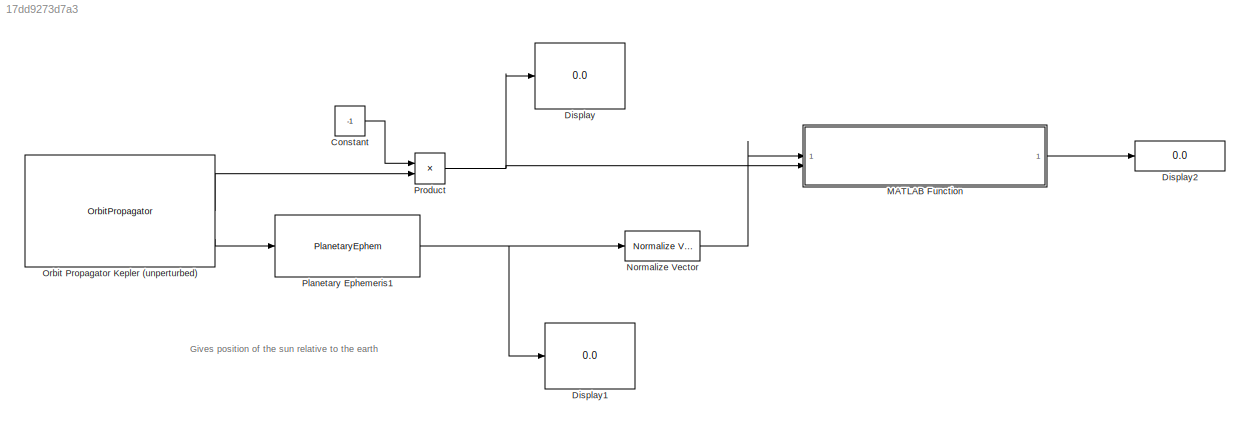
MODEL slx_17dd9273d7a3
KIND model
CONFIG AbsTol = auto
CONFIG EnableMultiTasking = off
CONFIG FixedStep = auto
CONFIG MaxStep = auto
CONFIG MinStep = auto
CONFIG RelTol = 1e-3
CONFIG SampleTimeConstraint = Unconstrained
CONFIG SolverName = VariableStepAuto
CONFIG StartTime = 0.0
CONFIG StopTime = 7200
BLOCK [Constant] Constant
  Value = -1
BLOCK [Display] Display
  Decimation = 1
BLOCK [Display] Display1
  Decimation = 1
BLOCK [Display] Display2
  Decimation = 1
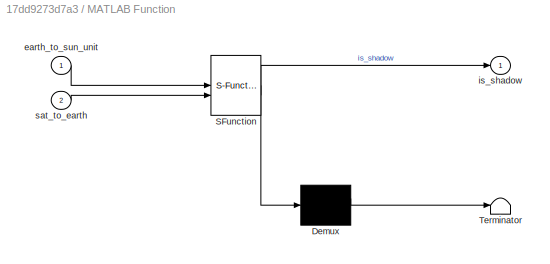
BLOCK [SubSystem] MATLAB Function
  ErrorFcn = Stateflow.Translate.translate
  PermitHierarchicalResolution = ExplicitOnly
  SFBlockType = MATLAB Function
  TreatAsAtomicUnit = on
BLOCK [Demux] MATLAB Function/ Demux 
  Outputs = 1
BLOCK [S-Function] MATLAB Function/ SFunction 
  EnableBusSupport = on
  FunctionName = sf_sfun
  PortCounts = [2 2]
  SFcnIsStateOwnerBlock = off
  SFunctionDeploymentMode = off
  Tag = Stateflow S-Function 2
BLOCK [Terminator] MATLAB Function/ Terminator 
BLOCK [Inport] MATLAB Function/earth_to_sun_unit
BLOCK [Outport] MATLAB Function/is_shadow
BLOCK [Inport] MATLAB Function/sat_to_earth
  Port = 2
BLOCK [Reference] Normalize Vector  REF=vrlib/Utilities/Normalize Vector
  SourceBlock = vrlib/Utilities/Normalize Vector
  SourceType = Normalize Vector
BLOCK [OrbitPropagator] Orbit Propagator Kepler (unperturbed)
  customJ2 = 1.0826269e-03
  customMu = 4.305e13
  customOmega = 4.06125949e-3
  customR = 3396200
  fixedPosition = [-4142689.0 -2676864.7 -4669861.6]
  fixedVelocity = [1452.7 -6720.7 2568.1]
  inertialPosition = [3649700.0 3308200.0 -4676600.0]
  inertialVelocity = [-2750.8 6666.4 2573.4]
BLOCK [PlanetaryEphem] Planetary Ephemeris1
  outputVelocity = off
  target = Sun
BLOCK [Product] Product
ANNOTATION (root): Gives position of the sun relative to the earth
LINE Constant:1 -> Product:1
LINE MATLAB Function:1 -> Display2:1
LINE Normalize Vector:1 -> MATLAB Function:1
LINE Orbit Propagator Kepler (unperturbed):1 -> Product:2
LINE Orbit Propagator Kepler (unperturbed):3 -> Planetary Ephemeris1:1
NET Planetary Ephemeris1:1 -> Display1:1, Normalize Vector:1
NET Product:1 -> Display:1, MATLAB Function:2
note: NET lines group one-source signal fan-out (src -> all destinations, sorted); 1:1 wires keep LINE
CHART MATLAB Function states=1 transitions=1
  STATE_LABEL 'eML_blk_kernel()'
  STATE_LABEL 'SCRIPT:\nfunction is_shadow = call_shadow_model(earth_to_sun_unit,sat_to_earth)\n\nis_shadow = is_in_shadow(earth_to_sun_unit,sat_to_earth);\n'
CHART  states=0 transitions=0
